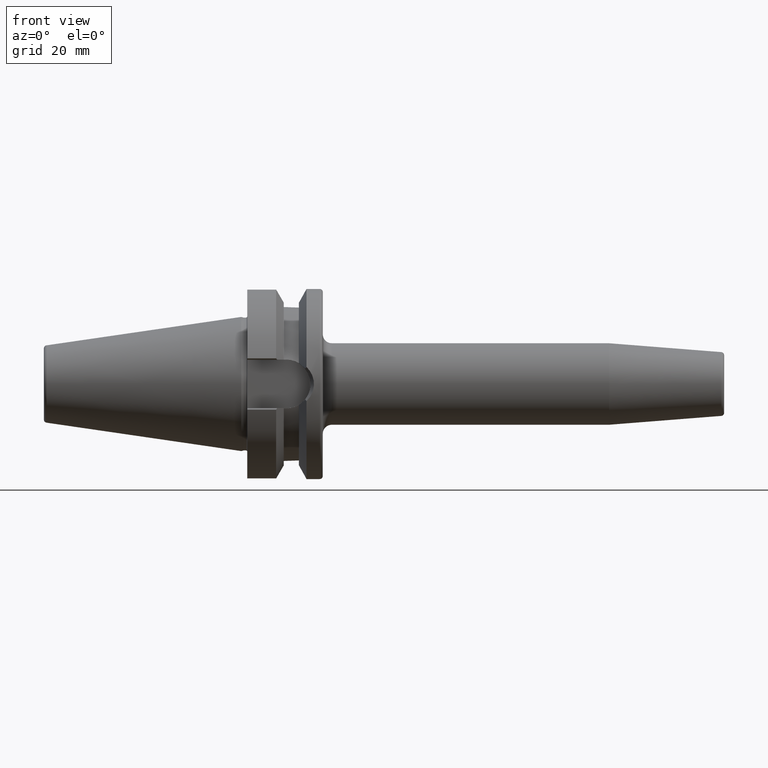
[diagram: clean part render]
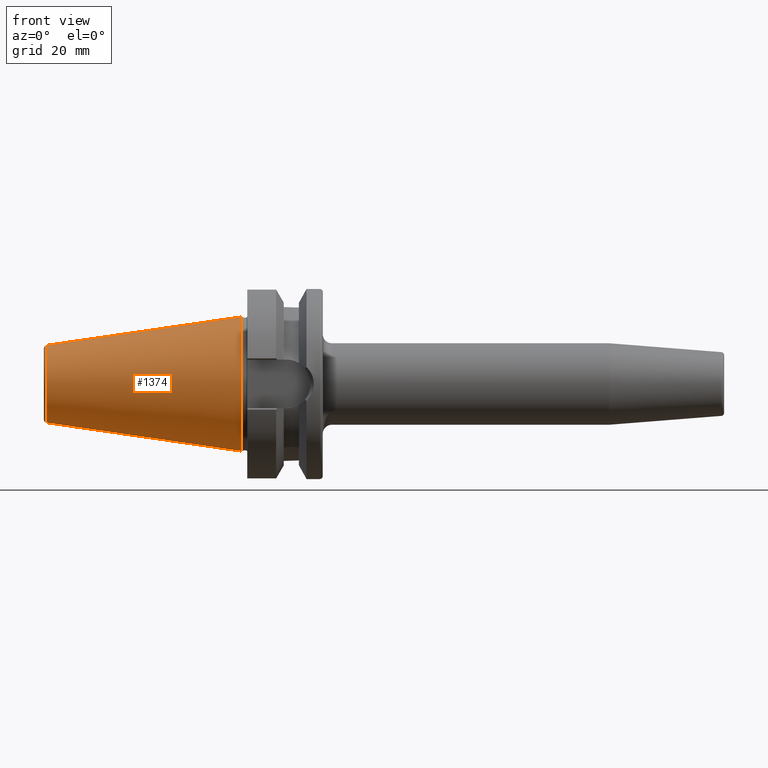
[diagram: same view with one face highlighted and labeled with its STEP entity id]
A machine part, front view. The second image highlights one B-rep face of the part: STEP entity #1374.
In plain terms, the highlighted conical surface has half-angle 8.297 deg.
Its self-contained STEP definition (entity closure, byte-faithful):
#20=CARTESIAN_POINT('',(4.547473508865E-13,0.E0,0.E0));
#21=DIRECTION('',(1.E0,0.E0,0.E0));
#22=DIRECTION('',(0.E0,0.E0,1.E0));
#23=AXIS2_PLACEMENT_3D('',#20,#21,#22);
#25=DIRECTION('',(-9.895329824990E-1,-2.390662347400E-10,1.443068832268E-1));
#26=VECTOR('',#25,6.522703944722E1);
#27=CARTESIAN_POINT('',(5.606857200746E-10,1.565092715213E-8,
-2.222499999985E1));
#28=LINE('',#27,#26);
#29=CARTESIAN_POINT('',(-6.454430688323E1,0.E0,0.E0));
#30=DIRECTION('',(-1.E0,0.E0,0.E0));
#31=DIRECTION('',(0.E0,0.E0,-1.E0));
#32=AXIS2_PLACEMENT_3D('',#29,#30,#31);
#34=DIRECTION('',(-9.895329824990E-1,2.390660335631E-10,-1.443068832268E-1));
#35=VECTOR('',#34,6.522703944722E1);
#36=CARTESIAN_POINT('',(5.606857200746E-10,-1.565091853005E-8,
2.222499999985E1));
#37=LINE('',#36,#35);
#1130=CARTESIAN_POINT('',(-6.454430688323E1,0.E0,1.281228923511E1));
#1131=CARTESIAN_POINT('',(-6.454430688323E1,0.E0,-1.281228923511E1));
#1132=VERTEX_POINT('',#1130);
#1133=VERTEX_POINT('',#1131);
#1134=CARTESIAN_POINT('',(4.547473508865E-13,0.E0,2.2225E1));
#1135=CARTESIAN_POINT('',(4.547473508865E-13,0.E0,-2.2225E1));
#1136=VERTEX_POINT('',#1134);
#1137=VERTEX_POINT('',#1135);
#1362=CARTESIAN_POINT('',(-3.227215344161E1,0.E0,0.E0));
#1363=DIRECTION('',(1.E0,0.E0,0.E0));
#1364=DIRECTION('',(0.E0,0.E0,1.E0));
#1365=AXIS2_PLACEMENT_3D('',#1362,#1363,#1364);
#1366=CONICAL_SURFACE('',#1365,1.751864461755E1,8.2971444E0);
#1367=ORIENTED_EDGE('',*,*,#1353,.T.);
#1368=ORIENTED_EDGE('',*,*,#1328,.T.);
#1370=ORIENTED_EDGE('',*,*,#1369,.T.);
#1371=ORIENTED_EDGE('',*,*,#1324,.F.);
#1372=EDGE_LOOP('',(#1367,#1368,#1370,#1371));
#1373=FACE_OUTER_BOUND('',#1372,.F.);
#1374=ADVANCED_FACE('',(#1373),#1366,.T.);
#24=CIRCLE('',#23,2.2225E1);
#33=CIRCLE('',#32,1.281228923511E1);
#1324=EDGE_CURVE('',#1136,#1132,#37,.T.);
#1328=EDGE_CURVE('',#1137,#1133,#28,.T.);
#1353=EDGE_CURVE('',#1136,#1137,#24,.T.);
#1369=EDGE_CURVE('',#1133,#1132,#33,.T.);